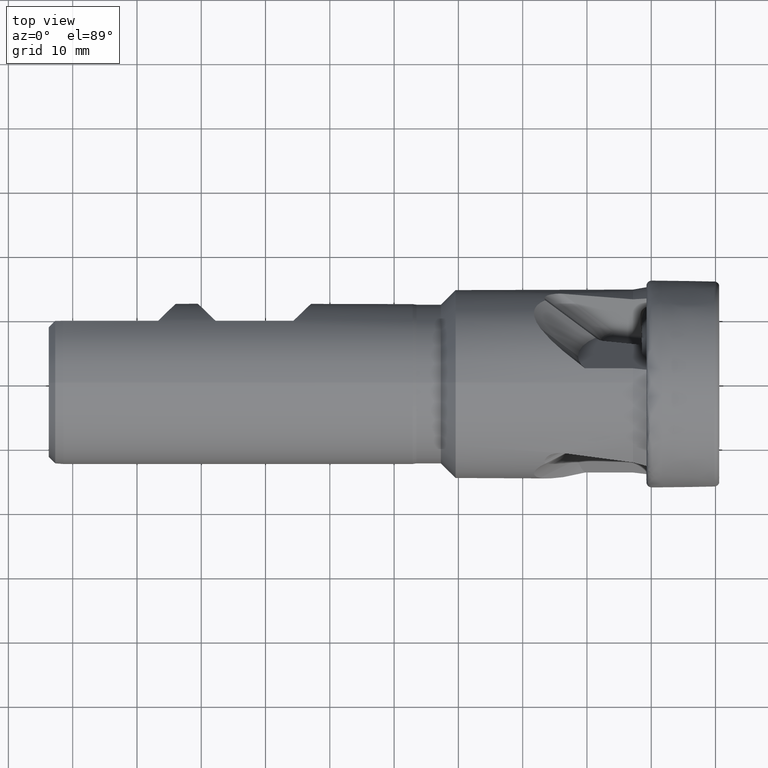
[diagram: clean part render]
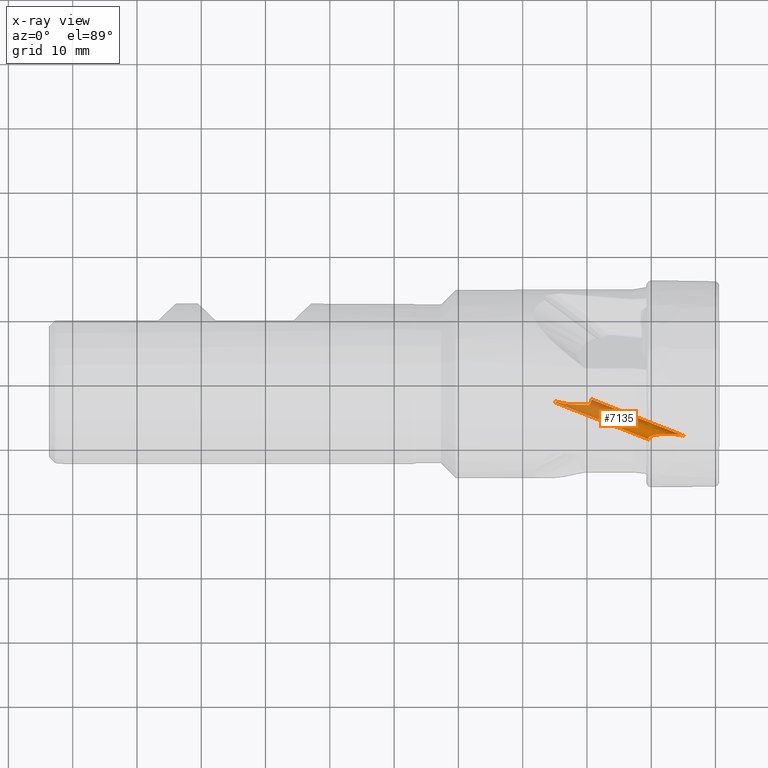
[diagram: x-ray — body ghosted, one internal face saturated and labeled with its STEP entity id]
A machine part, top view, then the same camera in x-ray: the body is ghosted and one INTERNAL B-rep face — a face not visible from any outside direction — is saturated and labeled: STEP entity #7135.
In plain terms, the highlighted cylindrical surface (edge-blend (fillet) strip) has radius 1.25 mm, axis along (0.9063, -0.3623, 0.2177).
Its self-contained STEP definition (entity closure, byte-faithful):
#647 = B_SPLINE_CURVE_WITH_KNOTS ( 'NONE', 3,
 ( #3024, #3026, #3031, #3032, #3033, #3034, #3035, #3036, #3037, #3038 ),
 .UNSPECIFIED., .F., .F.,
 ( 4, 2, 2, 2, 4 ),
 ( 0.0009349111682496640600, 0.001350707535121038000, 0.001766503901992411700, 0.002182300268863785700, 0.002598096635735159700 ),
 .UNSPECIFIED. ) ;
#651 =( BOUNDED_CURVE ( )  B_SPLINE_CURVE ( 3, ( #3056, #3055, #3077, #3078 ),
 .UNSPECIFIED., .F., .T. ) 
 B_SPLINE_CURVE_WITH_KNOTS ( ( 4, 4 ),
 ( 0.4986607755598076500, 3.640253429149601100 ),
 .UNSPECIFIED. ) 
 CURVE ( )  GEOMETRIC_REPRESENTATION_ITEM ( )  RATIONAL_B_SPLINE_CURVE ( ( 1.000000000000000000, 0.3333333333333332000, 0.3333333333333332000, 1.000000000000000000 ) ) 
 REPRESENTATION_ITEM ( '' )  );
#671 = VECTOR ( 'NONE', #6743, 999.9999999999998900 ) ;
#674 = LINE ( 'NONE', #6742, #671 ) ;
#880 = EDGE_CURVE ( 'NONE', #5558, #5557, #4892, .T. ) ;
#1453 = DIRECTION ( 'NONE',  ( 0.9063077870366497100, -0.3622545546436937200, 0.2176644959487651900 ) ) ;
#1455 = DIRECTION ( 'NONE',  ( 0.3711534595427835600, 0.9285715424615507100, 0.0000000000000000000 ) ) ;
#1458 = CARTESIAN_POINT ( 'NONE',  ( -24.40339482237347800, -1.703882544682603100, -2.298273094845816500 ) ) ;
#2224 = CARTESIAN_POINT ( 'NONE',  ( -23.93945299794499700, -0.5431681166056651100, -2.298273094845816500 ) ) ;
#2277 = DIRECTION ( 'NONE',  ( 0.9063077870366497100, -0.3622545546436937200, 0.2176644959487651900 ) ) ;
#2737 = VERTEX_POINT ( 'NONE', #5057 ) ;
#2739 = VERTEX_POINT ( 'NONE', #5048 ) ;
#2861 = CARTESIAN_POINT ( 'NONE',  ( -24.40339482237347800, -1.703882544682603100, -2.298273094845816500 ) ) ;
#2862 = DIRECTION ( 'NONE',  ( 0.9063077870366496000, -0.3622545546436937200, 0.2176644959487651900 ) ) ;
#2863 = DIRECTION ( 'NONE',  ( -0.4226182617407009400, -0.7768573994195074900, 0.4667830179113506800 ) ) ;
#3024 = CARTESIAN_POINT ( 'NONE',  ( -19.32319976810772400, -2.388301504861095400, -1.189605104990227900 ) ) ;
#3026 = CARTESIAN_POINT ( 'NONE',  ( -19.29337468601956500, -2.400222699827743600, -1.054339872164962800 ) ) ;
#3031 = CARTESIAN_POINT ( 'NONE',  ( -19.27652995467063200, -2.427713644801406700, -0.9145793728801490100 ) ) ;
#3032 = CARTESIAN_POINT ( 'NONE',  ( -19.27808384015547800, -2.514524213317141000, -0.6487081209564299300 ) ) ;
#3033 = CARTESIAN_POINT ( 'NONE',  ( -19.29674584610578200, -2.575143589707393300, -0.5194800055251693700 ) ) ;
#3034 = CARTESIAN_POINT ( 'NONE',  ( -19.36515573526924800, -2.724941017386484500, -0.2939687629069759300 ) ) ;
#3035 = CARTESIAN_POINT ( 'NONE',  ( -19.41551305295456200, -2.816244162598873200, -0.1946610257587601300 ) ) ;
#3036 = CARTESIAN_POINT ( 'NONE',  ( -19.53318420737705800, -3.018446147336177900, -0.04113272533765337200 ) ) ;
#3037 = CARTESIAN_POINT ( 'NONE',  ( -19.60146281559498900, -3.131390121338955900, 0.01516229528365992500 ) ) ;
#3038 = CARTESIAN_POINT ( 'NONE',  ( -19.67279701183959200, -3.249657065637253000, 0.04721181794678657600 ) ) ;
#3055 = CARTESIAN_POINT ( 'NONE',  ( -7.721802437610801200, -7.025422671992534300, 4.158071730320741300 ) ) ;
#3056 = CARTESIAN_POINT ( 'NONE',  ( -4.892710007387397500, -8.156221317899985800, 2.276110764373685800 ) ) ;
#3077 = CARTESIAN_POINT ( 'NONE',  ( -12.91694607013824800, -7.641212023505478800, 3.133220121724322700 ) ) ;
#3078 = CARTESIAN_POINT ( 'NONE',  ( -10.08785363991484700, -8.772010669412932100, 1.251259155777264100 ) ) ;
#3490 = EDGE_CURVE ( 'NONE', #5551, #5552, #674, .T. ) ;
#4455 = ORIENTED_EDGE ( 'NONE', *, *, #3490, .F. ) ;
#4456 = ORIENTED_EDGE ( 'NONE', *, *, #5636, .F. ) ;
#4457 = ORIENTED_EDGE ( 'NONE', *, *, #5727, .F. ) ;
#4458 = ORIENTED_EDGE ( 'NONE', *, *, #5658, .F. ) ;
#4459 = ORIENTED_EDGE ( 'NONE', *, *, #880, .T. ) ;
#4460 = ORIENTED_EDGE ( 'NONE', *, *, #5666, .T. ) ;
#4891 = VECTOR ( 'NONE', #2277, 999.9999999999998900 ) ;
#4892 = LINE ( 'NONE', #2224, #4891 ) ;
#4951 = CIRCLE ( 'NONE', #6182, 1.250000000000000000 ) ;
#5048 = CARTESIAN_POINT ( 'NONE',  ( -19.67279701183959200, -3.249657065637253000, 0.04721181794678657600 ) ) ;
#5057 = CARTESIAN_POINT ( 'NONE',  ( -24.93053097644231300, -2.715075240062185400, -1.786299650340283500 ) ) ;
#5543 = EDGE_LOOP ( 'NONE', ( #4455, #4456, #4457, #4458, #4459, #4460 ) ) ;
#5551 = VERTEX_POINT ( 'NONE', #6370 ) ;
#5552 = VERTEX_POINT ( 'NONE', #6378 ) ;
#5557 = VERTEX_POINT ( 'NONE', #6382 ) ;
#5558 = VERTEX_POINT ( 'NONE', #6383 ) ;
#5636 = EDGE_CURVE ( 'NONE', #2737, #5551, #4951, .T. ) ;
#5658 = EDGE_CURVE ( 'NONE', #5558, #2739, #647, .T. ) ;
#5666 = EDGE_CURVE ( 'NONE', #5557, #5552, #651, .T. ) ;
#5727 = EDGE_CURVE ( 'NONE', #2739, #2737, #5955, .T. ) ;
#5849 = FACE_OUTER_BOUND ( 'NONE', #5543, .T. ) ;
#5871 = CYLINDRICAL_SURFACE ( 'NONE', #6038, 1.249999999999999600 ) ;
#5955 = B_SPLINE_CURVE_WITH_KNOTS ( 'NONE', 3,
 ( #7400, #7416, #7420, #7421, #7422, #7423, #7424, #7425, #7426, #7427 ),
 .UNSPECIFIED., .F., .F.,
 ( 4, 2, 2, 2, 4 ),
 ( 3.242914112266467700E-015, 0.001406803950442758200, 0.002813607900882273800, 0.004220411851321789400, 0.005627215801761304600 ),
 .UNSPECIFIED. ) ;
#6038 = AXIS2_PLACEMENT_3D ( 'NONE', #1458, #1453, #1455 ) ;
#6182 = AXIS2_PLACEMENT_3D ( 'NONE', #2861, #2862, #2863 ) ;
#6370 = CARTESIAN_POINT ( 'NONE',  ( -24.86733664680195600, -2.864596972759541100, -2.298273094845816500 ) ) ;
#6378 = CARTESIAN_POINT ( 'NONE',  ( -10.08785363991484700, -8.772010669412932100, 1.251259155777264100 ) ) ;
#6382 = CARTESIAN_POINT ( 'NONE',  ( -4.892710007387397500, -8.156221317899985800, 2.276110764373685800 ) ) ;
#6383 = CARTESIAN_POINT ( 'NONE',  ( -19.32319976810772400, -2.388301504861095400, -1.189605104990227900 ) ) ;
#6742 = CARTESIAN_POINT ( 'NONE',  ( -24.86733664680195600, -2.864596972759541100, -2.298273094845816500 ) ) ;
#6743 = DIRECTION ( 'NONE',  ( 0.9063077870366497100, -0.3622545546436937200, 0.2176644959487651900 ) ) ;
#7135 = ADVANCED_FACE ( 'NONE', ( #5849 ), #5871, .F. ) ;
#7400 = CARTESIAN_POINT ( 'NONE',  ( -19.67279701183959200, -3.249657065637253000, 0.04721181794678657600 ) ) ;
#7416 = CARTESIAN_POINT ( 'NONE',  ( -20.14342514816281900, -3.250379931662575700, -0.002544086165147120000 ) ) ;
#7420 = CARTESIAN_POINT ( 'NONE',  ( -20.60431366830729500, -3.250900018297910400, -0.09225237696771523800 ) ) ;
#7421 = CARTESIAN_POINT ( 'NONE',  ( -21.51121366902253100, -3.235277655310127500, -0.3314210661327147100 ) ) ;
#7422 = CARTESIAN_POINT ( 'NONE',  ( -21.95870917686732300, -3.218725487477092100, -0.4824804488457956600 ) ) ;
#7423 = CARTESIAN_POINT ( 'NONE',  ( -22.83403608540207200, -3.148513721499282000, -0.8245256168147994100 ) ) ;
#7424 = CARTESIAN_POINT ( 'NONE',  ( -23.26009291372508500, -3.094667405773374300, -1.014502018869912500 ) ) ;
#7425 = CARTESIAN_POINT ( 'NONE',  ( -24.10035036572689600, -2.939234384770537100, -1.402526980143268000 ) ) ;
#7426 = CARTESIAN_POINT ( 'NONE',  ( -24.51473696487784400, -2.837565747636952000, -1.600120951711295800 ) ) ;
#7427 = CARTESIAN_POINT ( 'NONE',  ( -24.93053097644231300, -2.715075240062185400, -1.786299650340283500 ) ) ;